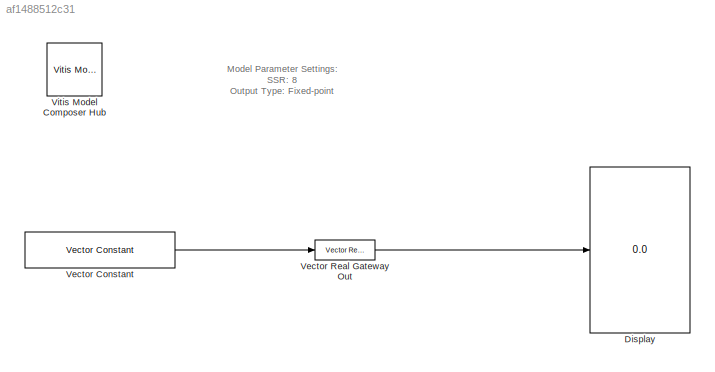
MODEL slx_af1488512c31
KIND model
CONFIG AbsTol = auto
CONFIG EnableMultiTasking = on
CONFIG FixedStep = auto
CONFIG MaxStep = auto
CONFIG MinStep = auto
CONFIG RelTol = 1e-3
CONFIG SampleTimeConstraint = Unconstrained
CONFIG SolverName = ode45
CONFIG StartTime = 0.0
CONFIG StopTime = 64/100e6
BLOCK [Display] Display
  Decimation = 1
BLOCK [Reference] Vector Constant  REF=hdlSSR/Vector Constant
  SourceBlock = hdlSSR/Vector Constant
  SourceType = Xilinx Vector Constant Block
BLOCK [Reference] Vector Real Gateway Out  REF=hdlSSR/Vector Real Gateway Out
  SourceBlock = hdlSSR/Vector Real Gateway Out
  SourceType = Xilinx Vector Gateway Out Block
BLOCK [Reference] Vitis Model Composer Hub  REF=vmcUtilities/Vitis Model Composer Hub
  SourceBlock = vmcUtilities/Vitis Model Composer Hub
  SourceType = VMC Hub
  Tag = genX
  UserDataPersistent = on
ANNOTATION (root): Model Parameter Settings: SSR: 8 Output Type: Fixed-point
LINE Vector Constant:1 -> Vector Real Gateway Out:1
LINE Vector Real Gateway Out:1 -> Display:1
